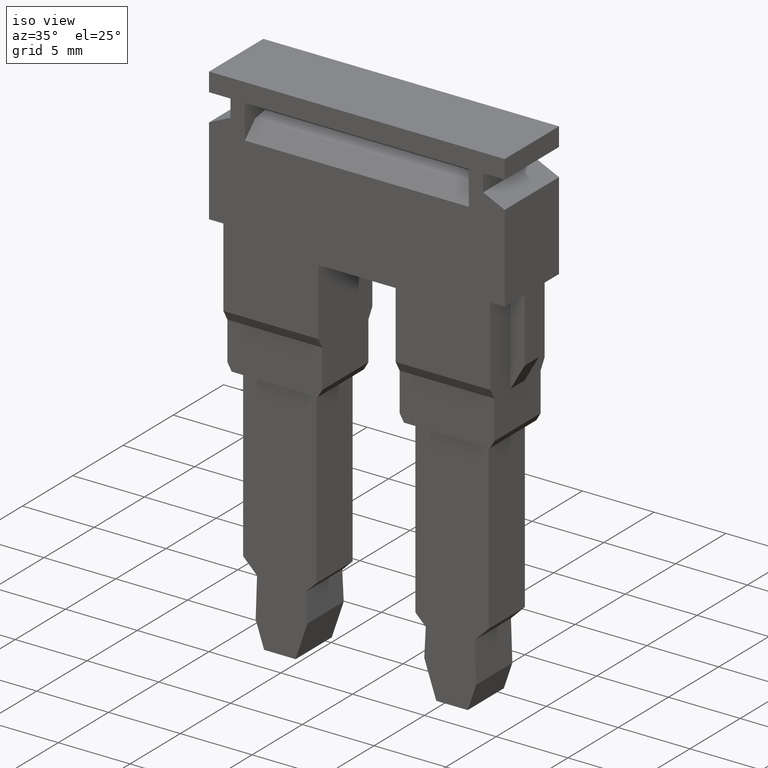
[diagram: clean part render]
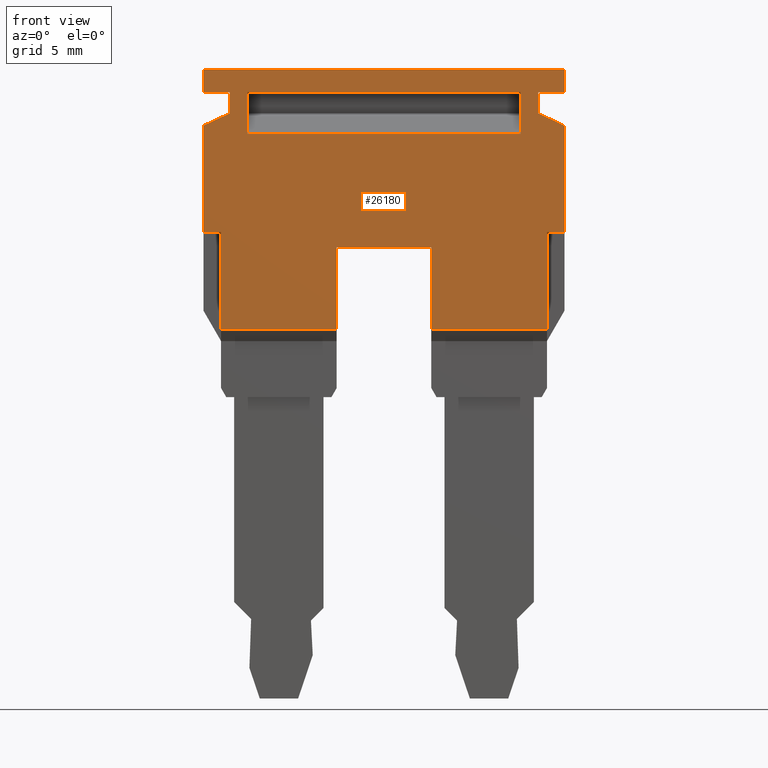
[diagram: tour spotlight — one face highlighted and labeled with its STEP entity id]
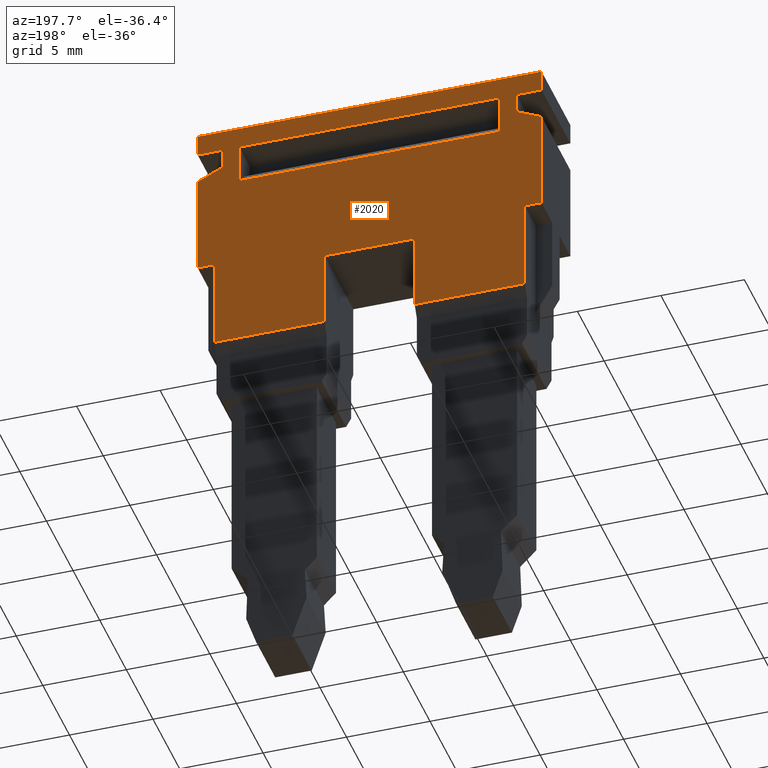
[diagram: tour spotlight — one face highlighted and labeled with its STEP entity id]
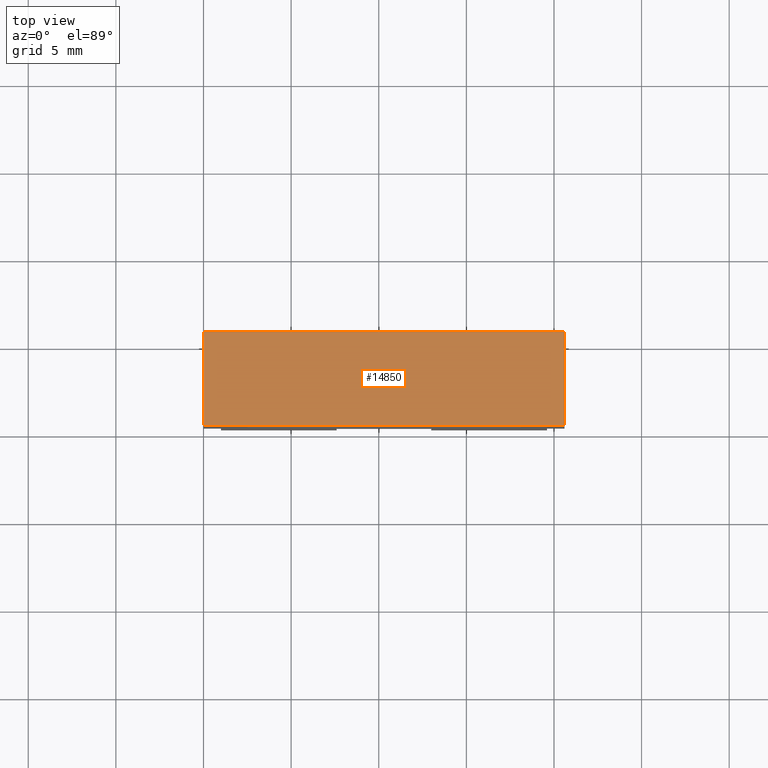
[diagram: tour spotlight — one face highlighted and labeled with its STEP entity id]
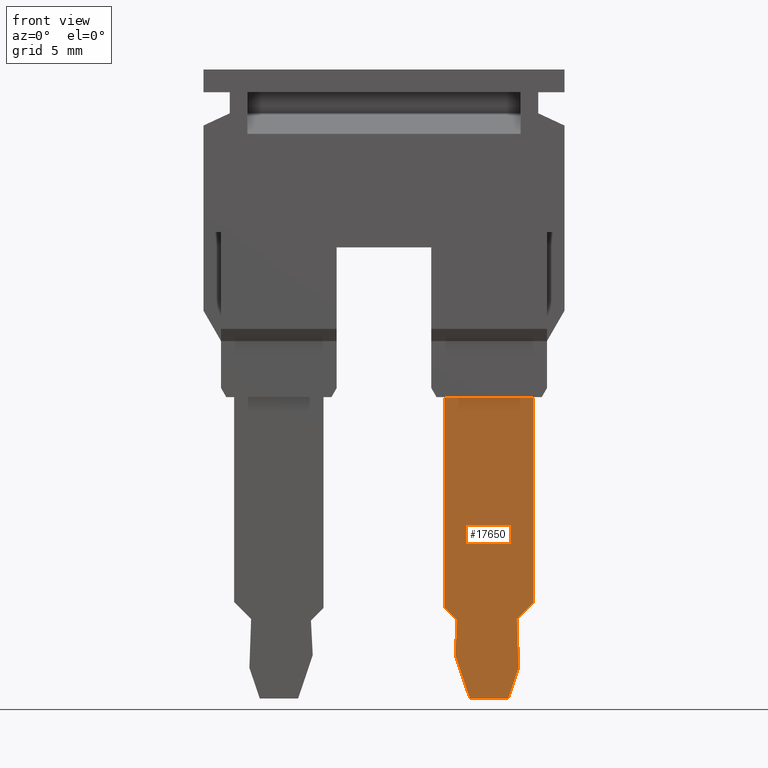
[diagram: tour spotlight — one face highlighted and labeled with its STEP entity id]
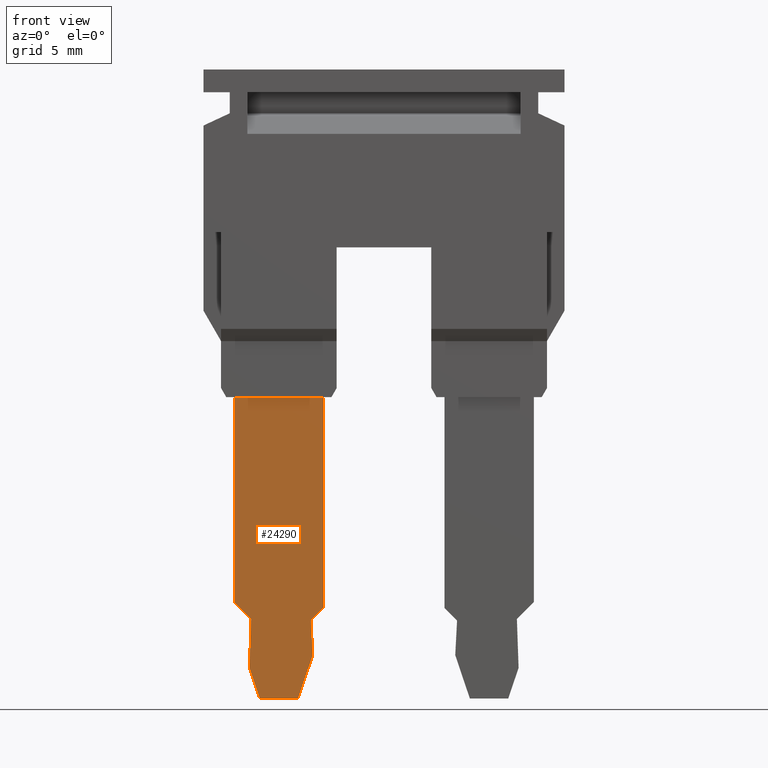
[diagram: tour spotlight — one face highlighted and labeled with its STEP entity id]
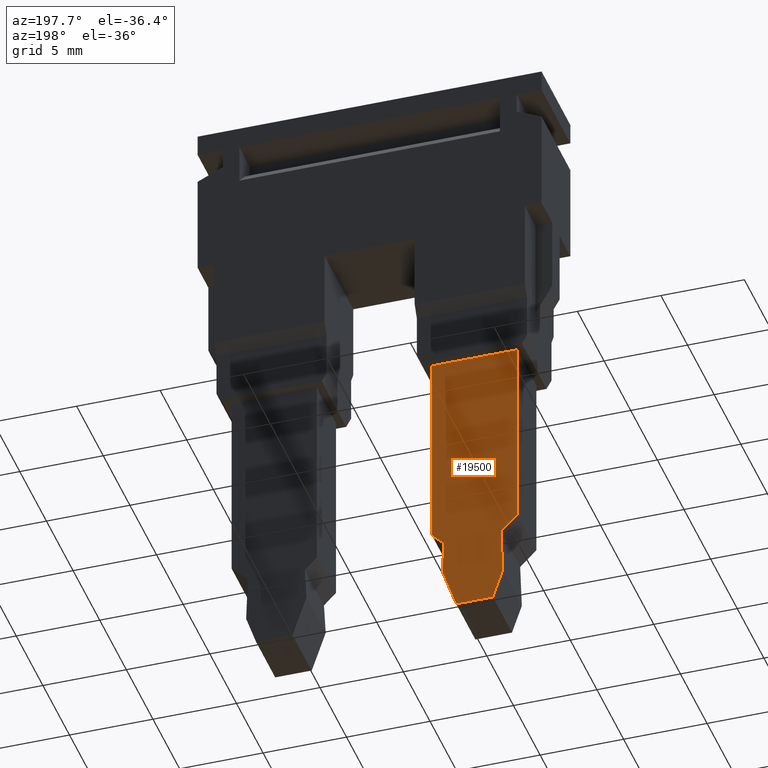
[diagram: tour spotlight — one face highlighted and labeled with its STEP entity id]
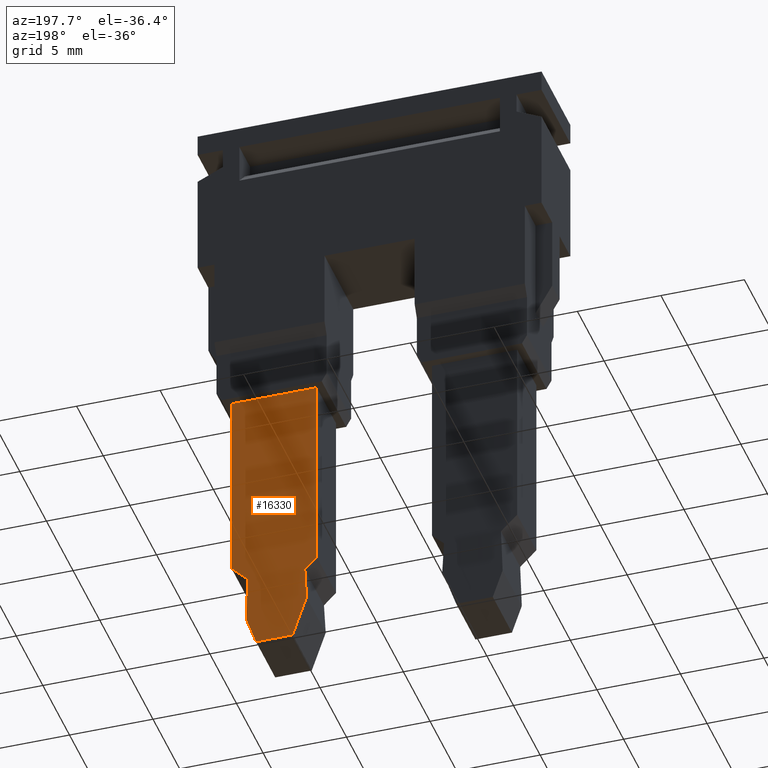
[diagram: tour spotlight — one face highlighted and labeled with its STEP entity id]
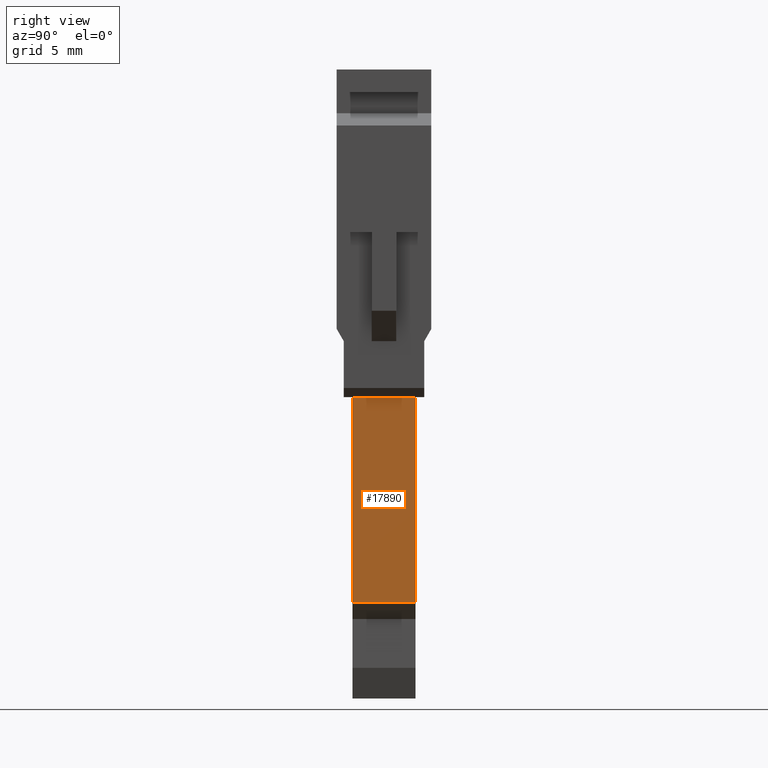
[diagram: tour spotlight — one face highlighted and labeled with its STEP entity id]
A machine part: a face-by-face anatomy tour. The part has 76 B-rep faces; the first image is the clean iso view, then the 8 largest visible faces are spotlighted one at a time (largest first), each with its STEP entity span.

Face 1 — front view, entity #26180. In plain terms, the highlighted planar face has unit normal (0, -1, 0).
Definition (entity closure, byte-faithful):
#2780=CARTESIAN_POINT('',(-12.55,36.1960271983001,-5.6));
#2790=DIRECTION('',(0.,0.,-1.));
#2800=VECTOR('',#2790,1.);
#2810=LINE('',#2780,#2800);
#2820=CARTESIAN_POINT('',(-12.55,36.1960271983001,-7.39999999999998));
#2830=VERTEX_POINT('',#2820);
#2840=CARTESIAN_POINT('',(-12.55,36.1960271983001,-8.39999999999998));
#2850=VERTEX_POINT('',#2840);
#2860=EDGE_CURVE('',#2830,#2850,#2810,.T.);
#3290=CARTESIAN_POINT('',(-12.55,45.4960271983001,-8.39999999999998));
#3300=VERTEX_POINT('',#3290);
#3330=CARTESIAN_POINT('',(-12.55,26.7540884716326,-8.39999999999998));
#3340=DIRECTION('',(0.,1.,0.));
#3350=VECTOR('',#3340,1.);
#3360=LINE('',#3330,#3350);
#3370=CARTESIAN_POINT('',(-12.55,44.1960271983001,-8.39999999999998));
#3380=VERTEX_POINT('',#3370);
#3390=EDGE_CURVE('',#3380,#3300,#3360,.T.);
#4680=CARTESIAN_POINT('',(-12.55,35.3460271983001,4.59999999999997));
#4690=VERTEX_POINT('',#4680);
#4720=CARTESIAN_POINT('',(-12.55,26.7540884716326,4.59999999999997));
#4730=DIRECTION('',(0.,-1.,1.22464679914735E-16));
#4740=VECTOR('',#4730,1.);
#4750=LINE('',#4720,#4740);
#4760=CARTESIAN_POINT('',(-12.55,30.6888475213276,4.59999999999997));
#4770=VERTEX_POINT('',#4760);
#4780=EDGE_CURVE('',#4690,#4770,#4750,.T.);
#6710=CARTESIAN_POINT('',(-12.55,44.1960271983001,12.2));
#6720=VERTEX_POINT('',#6710);
#6750=CARTESIAN_POINT('',(-12.55,26.7540884716326,12.2));
#6760=DIRECTION('',(0.,-1.,0.));
#6770=VECTOR('',#6760,1.);
#6780=LINE('',#6750,#6770);
#6790=CARTESIAN_POINT('',(-12.55,45.4960271983001,12.2));
#6800=VERTEX_POINT('',#6790);
#6810=EDGE_CURVE('',#6800,#6720,#6780,.T.);
#7470=CARTESIAN_POINT('',(-12.55,42.2965657110676,12.2));
#7480=VERTEX_POINT('',#7470);
#7510=CARTESIAN_POINT('',(-12.55,50.5968420262266,-5.6));
#7520=DIRECTION('',(0.,-0.4226182617407,0.90630778703665));
#7530=VECTOR('',#7520,1.);
#7540=LINE('',#7510,#7530);
#7550=CARTESIAN_POINT('',(-12.55,42.9960271983001,10.7));
#7560=VERTEX_POINT('',#7550);
#7570=EDGE_CURVE('',#7560,#7480,#7540,.T.);
#8710=CARTESIAN_POINT('',(-12.55,44.1960271983001,-5.6));
#8720=DIRECTION('',(0.,0.,-1.));
#8730=VECTOR('',#8720,1.);
#8740=LINE('',#8710,#8730);
#8750=CARTESIAN_POINT('',(-12.55,44.1960271983001,-6.9));
#8760=VERTEX_POINT('',#8750);
#8770=EDGE_CURVE('',#8760,#3380,#8740,.T.);
#9020=CARTESIAN_POINT('',(-12.55,26.7540884716326,-6.9));
#9030=DIRECTION('',(0.,1.,0.));
#9040=VECTOR('',#9030,1.);
#9050=LINE('',#9020,#9040);
#9060=CARTESIAN_POINT('',(-12.55,42.9960271983001,-6.9));
#9070=VERTEX_POINT('',#9060);
#9080=EDGE_CURVE('',#9070,#8760,#9050,.T.);
#9350=CARTESIAN_POINT('',(-12.55,30.6888475213276,-0.799999999999989));
#9360=VERTEX_POINT('',#9350);
#9440=CARTESIAN_POINT('',(-12.55,30.6888475213276,-7.39999999999998));
#9450=VERTEX_POINT('',#9440);
#9480=CARTESIAN_POINT('',(-12.55,30.6888475213276,-5.6));
#9490=DIRECTION('',(0.,0.,-1.));
#9500=VECTOR('',#9490,1.);
#9510=LINE('',#9480,#9500);
#9520=EDGE_CURVE('',#9360,#9450,#9510,.T.);
#9710=CARTESIAN_POINT('',(-12.55,26.7540884716326,-0.799999999999989));
#9720=DIRECTION('',(0.,1.,0.));
#9730=VECTOR('',#9720,1.);
#9740=LINE('',#9710,#9730);
#9750=CARTESIAN_POINT('',(-12.55,35.3460271983001,-0.799999999999989));
#9760=VERTEX_POINT('',#9750);
#9770=EDGE_CURVE('',#9360,#9760,#9740,.T.);
#10480=CARTESIAN_POINT('',(-12.55,26.7540884716326,-7.39999999999998));
#10490=DIRECTION('',(0.,-1.,0.));
#10500=VECTOR('',#10490,1.);
#10510=LINE('',#10480,#10500);
#10520=EDGE_CURVE('',#2830,#9450,#10510,.T.);
#10770=CARTESIAN_POINT('',(-12.55,42.2965657110676,-8.39999999999998));
#10780=VERTEX_POINT('',#10770);
#10810=CARTESIAN_POINT('',(-12.55,26.7540884716326,-8.39999999999998));
#10820=DIRECTION('',(0.,1.,0.));
#10830=VECTOR('',#10820,1.);
#10840=LINE('',#10810,#10830);
#10850=EDGE_CURVE('',#2850,#10780,#10840,.T.);
#11450=CARTESIAN_POINT('',(-12.55,43.6022271539016,-5.6));
#11460=DIRECTION('',(0.,0.4226182617407,0.90630778703665));
#11470=VECTOR('',#11460,1.);
#11480=LINE('',#11450,#11470);
#11490=EDGE_CURVE('',#10780,#9070,#11480,.T.);
#11720=CARTESIAN_POINT('',(-12.55,44.1960271983001,10.7));
#11730=VERTEX_POINT('',#11720);
#11760=CARTESIAN_POINT('',(-12.55,44.1960271983001,-5.6));
#11770=DIRECTION('',(0.,0.,-1.));
#11780=VECTOR('',#11770,1.);
#11790=LINE('',#11760,#11780);
#11800=EDGE_CURVE('',#6720,#11730,#11790,.T.);
#12100=CARTESIAN_POINT('',(-12.55,30.6888475213276,11.2));
#12110=VERTEX_POINT('',#12100);
#12140=CARTESIAN_POINT('',(-12.55,26.7540884716326,11.2));
#12150=DIRECTION('',(0.,1.,0.));
#12160=VECTOR('',#12150,1.);
#12170=LINE('',#12140,#12160);
#12180=CARTESIAN_POINT('',(-12.55,36.1960271983001,11.2));
#12190=VERTEX_POINT('',#12180);
#12200=EDGE_CURVE('',#12110,#12190,#12170,.T.);
#12840=CARTESIAN_POINT('',(-12.55,26.7540884716326,12.2));
#12850=DIRECTION('',(0.,-1.,0.));
#12860=VECTOR('',#12850,1.);
#12870=LINE('',#12840,#12860);
#12880=CARTESIAN_POINT('',(-12.55,36.1960271983001,12.2));
#12890=VERTEX_POINT('',#12880);
#12900=EDGE_CURVE('',#7480,#12890,#12870,.T.);
#14530=CARTESIAN_POINT('',(-12.55,36.1960271983001,-5.6));
#14540=DIRECTION('',(0.,0.,-1.));
#14550=VECTOR('',#14540,1.);
#14560=LINE('',#14530,#14550);
#14570=EDGE_CURVE('',#12890,#12190,#14560,.T.);
#14740=CARTESIAN_POINT('',(-12.55,45.4960271983001,-5.6));
#14750=DIRECTION('',(0.,0.,1.));
#14760=VECTOR('',#14750,1.);
#14770=LINE('',#14740,#14760);
#14780=EDGE_CURVE('',#3300,#6800,#14770,.T.);
#15380=CARTESIAN_POINT('',(-12.55,26.7540884716326,10.7));
#15390=DIRECTION('',(0.,-1.,0.));
#15400=VECTOR('',#15390,1.);
#15410=LINE('',#15380,#15400);
#15420=EDGE_CURVE('',#11730,#7560,#15410,.T.);
#25350=CARTESIAN_POINT('',(-12.55,30.6888475213276,-5.6));
#25360=DIRECTION('',(0.,0.,1.));
#25370=VECTOR('',#25360,1.);
#25380=LINE('',#25350,#25370);
#25390=EDGE_CURVE('',#4770,#12110,#25380,.T.);
#25520=CARTESIAN_POINT('',(-12.55,33.9592204289309,5.47430300083341));
#25530=DIRECTION('',(-1.,-0.,-0.));
#25540=DIRECTION('',(0.,0.,-1.));
#25550=AXIS2_PLACEMENT_3D('',#25520,#25530,#25540);
#25560=PLANE('',#25550);
#25570=CARTESIAN_POINT('',(-12.55,26.7540884716326,9.70000000000001));
#25580=DIRECTION('',(0.,1.,0.));
#25590=VECTOR('',#25580,1.);
#25600=LINE('',#25570,#25590);
#25610=CARTESIAN_POINT('',(-12.55,41.8197002175916,9.70000000000001));
#25620=VERTEX_POINT('',#25610);
#25630=CARTESIAN_POINT('',(-12.55,44.1960271983001,9.70000000000001));
#25640=VERTEX_POINT('',#25630);
#25650=EDGE_CURVE('',#25620,#25640,#25600,.T.);
#25660=ORIENTED_EDGE('',*,*,#25650,.F.);
#25670=CARTESIAN_POINT('',(-12.55,44.1960271983001,-5.6));
#25680=DIRECTION('',(0.,0.,-1.));
#25690=VECTOR('',#25680,1.);
#25700=LINE('',#25670,#25690);
#25710=CARTESIAN_POINT('',(-12.55,44.1960271983001,-5.9));
#25720=VERTEX_POINT('',#25710);
#25730=EDGE_CURVE('',#25640,#25720,#25700,.T.);
#25740=ORIENTED_EDGE('',*,*,#25730,.F.);
#25750=CARTESIAN_POINT('',(-12.55,26.7540884716326,-5.9));
#25760=DIRECTION('',(0.,1.,0.));
#25770=VECTOR('',#25760,1.);
#25780=LINE('',#25750,#25770);
#25790=CARTESIAN_POINT('',(-12.55,41.8197002175916,-5.9));
#25800=VERTEX_POINT('',#25790);
#25810=EDGE_CURVE('',#25800,#25720,#25780,.T.);
#25820=ORIENTED_EDGE('',*,*,#25810,.T.);
#25830=CARTESIAN_POINT('',(-12.55,41.8197002175916,-5.6));
#25840=DIRECTION('',(0.,0.,1.));
#25850=VECTOR('',#25840,1.);
#25860=LINE('',#25830,#25850);
#25870=EDGE_CURVE('',#25800,#25620,#25860,.T.);
#25880=ORIENTED_EDGE('',*,*,#25870,.F.);
#25890=EDGE_LOOP('',(#25880,#25820,#25740,#25660));
#25900=FACE_BOUND('',#25890,.T.);
#25910=ORIENTED_EDGE('',*,*,#12900,.F.);
#25920=ORIENTED_EDGE('',*,*,#14570,.F.);
#25930=ORIENTED_EDGE('',*,*,#12200,.T.);
#25940=ORIENTED_EDGE('',*,*,#25390,.T.);
#25950=ORIENTED_EDGE('',*,*,#4780,.T.);
#25960=CARTESIAN_POINT('',(-12.55,35.3460271983001,-5.6));
#25970=DIRECTION('',(0.,0.,1.));
#25980=VECTOR('',#25970,1.);
#25990=LINE('',#25960,#25980);
#26000=EDGE_CURVE('',#9760,#4690,#25990,.T.);
#26010=ORIENTED_EDGE('',*,*,#26000,.T.);
#26020=ORIENTED_EDGE('',*,*,#9770,.T.);
#26030=ORIENTED_EDGE('',*,*,#9520,.F.);
#26040=ORIENTED_EDGE('',*,*,#10520,.T.);
#26050=ORIENTED_EDGE('',*,*,#2860,.F.);
#26060=ORIENTED_EDGE('',*,*,#10850,.F.);
#26070=ORIENTED_EDGE('',*,*,#11490,.F.);
#26080=ORIENTED_EDGE('',*,*,#9080,.F.);
#26090=ORIENTED_EDGE('',*,*,#8770,.F.);
#26100=ORIENTED_EDGE('',*,*,#3390,.F.);
#26110=ORIENTED_EDGE('',*,*,#14780,.F.);
#26120=ORIENTED_EDGE('',*,*,#6810,.F.);
#26130=ORIENTED_EDGE('',*,*,#11800,.F.);
#26140=ORIENTED_EDGE('',*,*,#15420,.F.);
#26150=ORIENTED_EDGE('',*,*,#7570,.F.);
#26160=EDGE_LOOP('',(#26150,#26140,#26130,#26120,#26110,#26100,#26090,
#26080,#26070,#26060,#26050,#26040,#26030,#26020,#26010,#25950,#25940,
#25930,#25920,#25910));
#26170=FACE_OUTER_BOUND('',#26160,.T.);
#26180=ADVANCED_FACE('',(#25900,#26170),#25560,.T.);

Face 2 — auxiliary view, entity #2020. In plain terms, the highlighted planar face has unit normal (-0, 1, -0).
Definition (entity closure, byte-faithful):
#10=CARTESIAN_POINT('',(-7.15000000000002,33.9592204289309,4.85));
#20=DIRECTION('',(1.,0.,-0.));
#30=DIRECTION('',(0.,0.,1.));
#40=AXIS2_PLACEMENT_3D('',#10,#20,#30);
#50=PLANE('',#40);
#60=CARTESIAN_POINT('',(-7.15000000000002,26.7540884716326,
9.69999999999999));
#70=DIRECTION('',(0.,1.,0.));
#80=VECTOR('',#70,1.);
#90=LINE('',#60,#80);
#100=CARTESIAN_POINT('',(-7.15000000000002,41.8197002175916,
9.69999999999999));
#110=VERTEX_POINT('',#100);
#120=CARTESIAN_POINT('',(-7.15000000000002,44.1960271983001,
9.69999999999999));
#130=VERTEX_POINT('',#120);
#140=EDGE_CURVE('',#110,#130,#90,.T.);
#150=ORIENTED_EDGE('',*,*,#140,.T.);
#160=CARTESIAN_POINT('',(-7.15000000000002,41.8197002175916,-5.6));
#170=DIRECTION('',(0.,0.,1.));
#180=VECTOR('',#170,1.);
#190=LINE('',#160,#180);
#200=CARTESIAN_POINT('',(-7.15000000000002,41.8197002175916,
-5.90000000000002));
#210=VERTEX_POINT('',#200);
#220=EDGE_CURVE('',#210,#110,#190,.T.);
#230=ORIENTED_EDGE('',*,*,#220,.T.);
#240=CARTESIAN_POINT('',(-7.15000000000002,26.7540884716326,
-5.90000000000002));
#250=DIRECTION('',(0.,1.,0.));
#260=VECTOR('',#250,1.);
#270=LINE('',#240,#260);
#280=CARTESIAN_POINT('',(-7.15000000000002,44.1960271983001,
-5.90000000000002));
#290=VERTEX_POINT('',#280);
#300=EDGE_CURVE('',#210,#290,#270,.T.);
#310=ORIENTED_EDGE('',*,*,#300,.F.);
#320=CARTESIAN_POINT('',(-7.15000000000002,44.1960271983001,-5.6));
#330=DIRECTION('',(0.,0.,-1.));
#340=VECTOR('',#330,1.);
#350=LINE('',#320,#340);
#360=EDGE_CURVE('',#130,#290,#350,.T.);
#370=ORIENTED_EDGE('',*,*,#360,.T.);
#380=EDGE_LOOP('',(#370,#310,#230,#150));
#390=FACE_BOUND('',#380,.T.);
#400=CARTESIAN_POINT('',(-7.15000000000002,36.1960271983001,-5.6));
#410=DIRECTION('',(0.,0.,1.));
#420=VECTOR('',#410,1.);
#430=LINE('',#400,#420);
#440=CARTESIAN_POINT('',(-7.15000000000002,36.1960271983001,
-8.39999999999998));
#450=VERTEX_POINT('',#440);
#460=CARTESIAN_POINT('',(-7.15000000000002,36.1960271983001,
-7.39999999999998));
#470=VERTEX_POINT('',#460);
#480=EDGE_CURVE('',#450,#470,#430,.T.);
#490=ORIENTED_EDGE('',*,*,#480,.F.);
#500=CARTESIAN_POINT('',(-7.15000000000002,26.7540884716326,
-7.39999999999998));
#510=DIRECTION('',(0.,1.,0.));
#520=VECTOR('',#510,1.);
#530=LINE('',#500,#520);
#540=CARTESIAN_POINT('',(-7.15000000000002,30.6888475213276,
-7.39999999999998));
#550=VERTEX_POINT('',#540);
#560=EDGE_CURVE('',#550,#470,#530,.T.);
#570=ORIENTED_EDGE('',*,*,#560,.T.);
#580=CARTESIAN_POINT('',(-7.15000000000002,30.6888475213276,-5.6));
#590=DIRECTION('',(0.,0.,1.));
#600=VECTOR('',#590,1.);
#610=LINE('',#580,#600);
#620=CARTESIAN_POINT('',(-7.15000000000002,30.6888475213276,
-0.799999999999989));
#630=VERTEX_POINT('',#620);
#640=EDGE_CURVE('',#550,#630,#610,.T.);
#650=ORIENTED_EDGE('',*,*,#640,.F.);
#660=CARTESIAN_POINT('',(-7.15000000000002,26.7540884716326,
-0.799999999999989));
#670=DIRECTION('',(0.,-1.,0.));
#680=VECTOR('',#670,1.);
#690=LINE('',#660,#680);
#700=CARTESIAN_POINT('',(-7.15000000000002,35.3460271983001,
-0.799999999999989));
#710=VERTEX_POINT('',#700);
#720=EDGE_CURVE('',#710,#630,#690,.T.);
#730=ORIENTED_EDGE('',*,*,#720,.T.);
#740=CARTESIAN_POINT('',(-7.15000000000002,35.3460271983001,-5.6));
#750=DIRECTION('',(0.,0.,-1.));
#760=VECTOR('',#750,1.);
#770=LINE('',#740,#760);
#780=CARTESIAN_POINT('',(-7.15000000000002,35.3460271983001,
4.59999999999997));
#790=VERTEX_POINT('',#780);
#800=EDGE_CURVE('',#790,#710,#770,.T.);
#810=ORIENTED_EDGE('',*,*,#800,.T.);
#820=CARTESIAN_POINT('',(-7.15000000000002,26.7540884716326,
4.59999999999997));
#830=DIRECTION('',(0.,1.,-1.22464679914735E-16));
#840=VECTOR('',#830,1.);
#850=LINE('',#820,#840);
#860=CARTESIAN_POINT('',(-7.15000000000001,30.6888475213276,
4.59999999999997));
#870=VERTEX_POINT('',#860);
#880=EDGE_CURVE('',#870,#790,#850,.T.);
#890=ORIENTED_EDGE('',*,*,#880,.T.);
#900=CARTESIAN_POINT('',(-7.15000000000002,30.6888475213276,-5.6));
#910=DIRECTION('',(0.,0.,-1.));
#920=VECTOR('',#910,1.);
#930=LINE('',#900,#920);
#940=CARTESIAN_POINT('',(-7.15000000000002,30.6888475213276,11.2));
#950=VERTEX_POINT('',#940);
#960=EDGE_CURVE('',#950,#870,#930,.T.);
#970=ORIENTED_EDGE('',*,*,#960,.T.);
#980=CARTESIAN_POINT('',(-7.15000000000002,26.7540884716326,11.2));
#990=DIRECTION('',(0.,-1.,0.));
#1000=VECTOR('',#990,1.);
#1010=LINE('',#980,#1000);
#1020=CARTESIAN_POINT('',(-7.15000000000002,36.1960271983001,11.2));
#1030=VERTEX_POINT('',#1020);
#1040=EDGE_CURVE('',#1030,#950,#1010,.T.);
#1050=ORIENTED_EDGE('',*,*,#1040,.T.);
#1060=CARTESIAN_POINT('',(-7.15000000000002,36.1960271983001,-5.6));
#1070=DIRECTION('',(0.,0.,1.));
#1080=VECTOR('',#1070,1.);
#1090=LINE('',#1060,#1080);
#1100=CARTESIAN_POINT('',(-7.15000000000002,36.1960271983001,12.2));
#1110=VERTEX_POINT('',#1100);
#1120=EDGE_CURVE('',#1030,#1110,#1090,.T.);
#1130=ORIENTED_EDGE('',*,*,#1120,.F.);
#1140=CARTESIAN_POINT('',(-7.15000000000002,26.7540884716326,12.2));
#1150=DIRECTION('',(0.,-1.,0.));
#1160=VECTOR('',#1150,1.);
#1170=LINE('',#1140,#1160);
#1180=CARTESIAN_POINT('',(-7.15000000000002,42.2965657110676,12.2));
#1190=VERTEX_POINT('',#1180);
#1200=EDGE_CURVE('',#1190,#1110,#1170,.T.);
#1210=ORIENTED_EDGE('',*,*,#1200,.T.);
#1220=CARTESIAN_POINT('',(-7.15000000000002,50.5968420262266,-5.6));
#1230=DIRECTION('',(0.,-0.4226182617407,0.90630778703665));
#1240=VECTOR('',#1230,1.);
#1250=LINE('',#1220,#1240);
#1260=CARTESIAN_POINT('',(-7.15000000000002,42.9960271983001,10.7));
#1270=VERTEX_POINT('',#1260);
#1280=EDGE_CURVE('',#1270,#1190,#1250,.T.);
#1290=ORIENTED_EDGE('',*,*,#1280,.T.);
#1300=CARTESIAN_POINT('',(-7.15000000000002,26.7540884716326,10.7));
#1310=DIRECTION('',(0.,-1.,0.));
#1320=VECTOR('',#1310,1.);
#1330=LINE('',#1300,#1320);
#1340=CARTESIAN_POINT('',(-7.15000000000002,44.1960271983001,10.7));
#1350=VERTEX_POINT('',#1340);
#1360=EDGE_CURVE('',#1350,#1270,#1330,.T.);
#1370=ORIENTED_EDGE('',*,*,#1360,.T.);
#1380=CARTESIAN_POINT('',(-7.15000000000002,44.1960271983001,-5.6));
#1390=DIRECTION('',(0.,0.,-1.));
#1400=VECTOR('',#1390,1.);
#1410=LINE('',#1380,#1400);
#1420=CARTESIAN_POINT('',(-7.15000000000002,44.1960271983001,12.2));
#1430=VERTEX_POINT('',#1420);
#1440=EDGE_CURVE('',#1430,#1350,#1410,.T.);
#1450=ORIENTED_EDGE('',*,*,#1440,.T.);
#1460=CARTESIAN_POINT('',(-7.15000000000002,26.7540884716326,12.2));
#1470=DIRECTION('',(0.,-1.,0.));
#1480=VECTOR('',#1470,1.);
#1490=LINE('',#1460,#1480);
#1500=CARTESIAN_POINT('',(-7.15000000000002,45.4960271983001,12.2));
#1510=VERTEX_POINT('',#1500);
#1520=EDGE_CURVE('',#1510,#1430,#1490,.T.);
#1530=ORIENTED_EDGE('',*,*,#1520,.T.);
#1540=CARTESIAN_POINT('',(-7.15000000000002,45.4960271983001,-5.6));
#1550=DIRECTION('',(0.,0.,-1.));
#1560=VECTOR('',#1550,1.);
#1570=LINE('',#1540,#1560);
#1580=CARTESIAN_POINT('',(-7.15000000000002,45.4960271983001,
-8.39999999999998));
#1590=VERTEX_POINT('',#1580);
#1600=EDGE_CURVE('',#1510,#1590,#1570,.T.);
#1610=ORIENTED_EDGE('',*,*,#1600,.F.);
#1620=CARTESIAN_POINT('',(-7.15000000000002,26.7540884716326,
-8.39999999999998));
#1630=DIRECTION('',(0.,1.,0.));
#1640=VECTOR('',#1630,1.);
#1650=LINE('',#1620,#1640);
#1660=CARTESIAN_POINT('',(-7.15000000000002,44.1960271983001,
-8.39999999999998));
#1670=VERTEX_POINT('',#1660);
#1680=EDGE_CURVE('',#1670,#1590,#1650,.T.);
#1690=ORIENTED_EDGE('',*,*,#1680,.T.);
#1700=CARTESIAN_POINT('',(-7.15000000000002,44.1960271983001,-5.6));
#1710=DIRECTION('',(0.,0.,-1.));
#1720=VECTOR('',#1710,1.);
#1730=LINE('',#1700,#1720);
#1740=CARTESIAN_POINT('',(-7.15000000000002,44.1960271983001,-6.9));
#1750=VERTEX_POINT('',#1740);
#1760=EDGE_CURVE('',#1750,#1670,#1730,.T.);
#1770=ORIENTED_EDGE('',*,*,#1760,.T.);
#1780=CARTESIAN_POINT('',(-7.15000000000002,26.7540884716326,-6.9));
#1790=DIRECTION('',(0.,1.,0.));
#1800=VECTOR('',#1790,1.);
#1810=LINE('',#1780,#1800);
#1820=CARTESIAN_POINT('',(-7.15000000000002,42.9960271983001,-6.9));
#1830=VERTEX_POINT('',#1820);
#1840=EDGE_CURVE('',#1830,#1750,#1810,.T.);
#1850=ORIENTED_EDGE('',*,*,#1840,.T.);
#1860=CARTESIAN_POINT('',(-7.15000000000002,43.6022271539016,-5.6));
#1870=DIRECTION('',(0.,0.4226182617407,0.90630778703665));
#1880=VECTOR('',#1870,1.);
#1890=LINE('',#1860,#1880);
#1900=CARTESIAN_POINT('',(-7.15000000000002,42.2965657110676,
-8.39999999999998));
#1910=VERTEX_POINT('',#1900);
#1920=EDGE_CURVE('',#1910,#1830,#1890,.T.);
#1930=ORIENTED_EDGE('',*,*,#1920,.T.);
#1940=CARTESIAN_POINT('',(-7.15000000000002,26.7540884716326,
-8.39999999999998));
#1950=DIRECTION('',(0.,1.,0.));
#1960=VECTOR('',#1950,1.);
#1970=LINE('',#1940,#1960);
#1980=EDGE_CURVE('',#450,#1910,#1970,.T.);
#1990=ORIENTED_EDGE('',*,*,#1980,.T.);
#2000=EDGE_LOOP('',(#1990,#1930,#1850,#1770,#1690,#1610,#1530,#1450,
#1370,#1290,#1210,#1130,#1050,#970,#890,#810,#730,#650,#570,#490));
#2010=FACE_OUTER_BOUND('',#2000,.T.);
#2020=ADVANCED_FACE('',(#390,#2010),#50,.T.);

Face 3 — top view, entity #14850. In plain terms, the highlighted planar face has unit normal (-0, 0, 1).
Definition (entity closure, byte-faithful):
#1500=CARTESIAN_POINT('',(-7.15000000000002,45.4960271983001,12.2));
#1510=VERTEX_POINT('',#1500);
#1540=CARTESIAN_POINT('',(-7.15000000000002,45.4960271983001,-5.6));
#1550=DIRECTION('',(0.,0.,-1.));
#1560=VECTOR('',#1550,1.);
#1570=LINE('',#1540,#1560);
#1580=CARTESIAN_POINT('',(-7.15000000000002,45.4960271983001,
-8.39999999999998));
#1590=VERTEX_POINT('',#1580);
#1600=EDGE_CURVE('',#1510,#1590,#1570,.T.);
#3250=CARTESIAN_POINT('',(-10.9510893734794,45.4960271983001,
-8.39999999999998));
#3260=DIRECTION('',(1.,0.,-2.44929359829471E-16));
#3270=VECTOR('',#3260,1.);
#3280=LINE('',#3250,#3270);
#3290=CARTESIAN_POINT('',(-12.55,45.4960271983001,-8.39999999999998));
#3300=VERTEX_POINT('',#3290);
#3310=EDGE_CURVE('',#3300,#1590,#3280,.T.);
#6790=CARTESIAN_POINT('',(-12.55,45.4960271983001,12.2));
#6800=VERTEX_POINT('',#6790);
#6830=CARTESIAN_POINT('',(-10.9510893734794,45.4960271983001,12.2));
#6840=DIRECTION('',(1.,0.,2.44929359829471E-16));
#6850=VECTOR('',#6840,1.);
#6860=LINE('',#6830,#6850);
#6870=EDGE_CURVE('',#6800,#1510,#6860,.T.);
#14690=CARTESIAN_POINT('',(-11.6500000000023,45.4960271983001,-14.303517
));
#14700=DIRECTION('',(0.,1.,0.));
#14710=DIRECTION('',(0.,0.,1.));
#14720=AXIS2_PLACEMENT_3D('',#14690,#14700,#14710);
#14730=PLANE('',#14720);
#14740=CARTESIAN_POINT('',(-12.55,45.4960271983001,-5.6));
#14750=DIRECTION('',(0.,0.,1.));
#14760=VECTOR('',#14750,1.);
#14770=LINE('',#14740,#14760);
#14780=EDGE_CURVE('',#3300,#6800,#14770,.T.);
#14790=ORIENTED_EDGE('',*,*,#14780,.T.);
#14800=ORIENTED_EDGE('',*,*,#3310,.F.);
#14810=ORIENTED_EDGE('',*,*,#1600,.T.);
#14820=ORIENTED_EDGE('',*,*,#6870,.T.);
#14830=EDGE_LOOP('',(#14820,#14810,#14800,#14790));
#14840=FACE_OUTER_BOUND('',#14830,.T.);
#14850=ADVANCED_FACE('',(#14840),#14730,.T.);

Face 4 — front view, entity #17650. In plain terms, the highlighted planar face has unit normal (0, -1, 0).
Definition (entity closure, byte-faithful):
#5130=CARTESIAN_POINT('',(-11.65,26.7960271983001,10.45));
#5140=VERTEX_POINT('',#5130);
#5190=CARTESIAN_POINT('',(-11.65,26.7960271983001,-5.6));
#5200=DIRECTION('',(-1.22464679914735E-16,0.,-1.));
#5210=VECTOR('',#5200,1.);
#5220=LINE('',#5190,#5210);
#5230=CARTESIAN_POINT('',(-11.65,26.7960271983001,5.35000000000001));
#5240=VERTEX_POINT('',#5230);
#5250=EDGE_CURVE('',#5140,#5240,#5220,.T.);
#16870=CARTESIAN_POINT('',(-11.65,15.7062228456001,7.41858));
#16880=DIRECTION('',(-1.,0.,1.22464679914735E-16));
#16890=DIRECTION('',(0.,-1.,0.));
#16900=AXIS2_PLACEMENT_3D('',#16870,#16880,#16890);
#16910=PLANE('',#16900);
#16920=CARTESIAN_POINT('',(-11.65,1.75068084560001,10.45));
#16930=DIRECTION('',(0.,1.,0.));
#16940=VECTOR('',#16930,1.);
#16950=LINE('',#16920,#16940);
#16960=CARTESIAN_POINT('',(-11.65,15.1035690385662,10.45));
#16970=VERTEX_POINT('',#16960);
#16980=EDGE_CURVE('',#16970,#5140,#16950,.T.);
#16990=ORIENTED_EDGE('',*,*,#16980,.T.);
#17000=CARTESIAN_POINT('',(-11.65,-0.946430961433851,-5.6));
#17010=DIRECTION('',(5.55111512312578E-17,0.707106781186548,
0.707106781186548));
#17020=VECTOR('',#17010,1.);
#17030=LINE('',#17000,#17020);
#17040=CARTESIAN_POINT('',(-11.65,14.1369679288971,9.48339889033098));
#17050=VERTEX_POINT('',#17040);
#17060=EDGE_CURVE('',#17050,#16970,#17030,.T.);
#17070=ORIENTED_EDGE('',*,*,#17060,.T.);
#17080=CARTESIAN_POINT('',(-11.65,1.75068084560001,9.91593756642543));
#17090=DIRECTION('',(-4.27395569285731E-18,0.999390827019096,
-0.0348994967025023));
#17100=VECTOR('',#17090,1.);
#17110=LINE('',#17080,#17100);
#17120=CARTESIAN_POINT('',(-11.65,11.3476283907902,9.58080477337544));
#17130=VERTEX_POINT('',#17120);
#17140=EDGE_CURVE('',#17130,#17050,#17110,.T.);
#17150=ORIENTED_EDGE('',*,*,#17140,.T.);
#17160=CARTESIAN_POINT('',(-11.65,1.75068084560001,6.34641269337296));
#17170=DIRECTION('',(3.91118902855721E-17,0.947629147539961,
0.319372820904797));
#17180=VECTOR('',#17170,1.);
#17190=LINE('',#17160,#17180);
#17200=CARTESIAN_POINT('',(-11.65,9.59602719830006,8.99047487966332));
#17210=VERTEX_POINT('',#17200);
#17220=EDGE_CURVE('',#17210,#17130,#17190,.T.);
#17230=ORIENTED_EDGE('',*,*,#17220,.T.);
#17240=CARTESIAN_POINT('',(-11.65,9.59602719830006,-5.6));
#17250=DIRECTION('',(1.22464679914735E-16,0.,1.));
#17260=VECTOR('',#17250,1.);
#17270=LINE('',#17240,#17260);
#17280=CARTESIAN_POINT('',(-11.65,9.59602719830006,6.80070635701419));
#17290=VERTEX_POINT('',#17280);
#17300=EDGE_CURVE('',#17290,#17210,#17270,.T.);
#17310=ORIENTED_EDGE('',*,*,#17300,.T.);
#17320=CARTESIAN_POINT('',(-11.65,1.75068084560001,9.44476854330451));
#17330=DIRECTION('',(3.91118902855714E-17,-0.947629147539962,
0.319372820904792));
#17340=VECTOR('',#17330,1.);
#17350=LINE('',#17320,#17340);
#17360=CARTESIAN_POINT('',(-11.65,12.0716188825348,5.96637501372978));
#17370=VERTEX_POINT('',#17360);
#17380=EDGE_CURVE('',#17370,#17290,#17350,.T.);
#17390=ORIENTED_EDGE('',*,*,#17380,.T.);
#17400=CARTESIAN_POINT('',(-11.65,1.75068084560001,5.42547757109615));
#17410=DIRECTION('',(-6.40930612932371E-18,-0.998629534754574,
-0.0523359562429438));
#17420=VECTOR('',#17410,1.);
#17430=LINE('',#17400,#17420);
#17440=CARTESIAN_POINT('',(-11.65,14.0509213383293,6.07010585996744));
#17450=VERTEX_POINT('',#17440);
#17460=EDGE_CURVE('',#17450,#17370,#17430,.T.);
#17470=ORIENTED_EDGE('',*,*,#17460,.T.);
#17480=CARTESIAN_POINT('',(-11.65,25.7210271982898,-5.6));
#17490=DIRECTION('',(1.11022302462516E-16,-0.707106781186339,
0.707106781186757));
#17500=VECTOR('',#17490,1.);
#17510=LINE('',#17480,#17500);
#17520=CARTESIAN_POINT('',(-11.65,14.7710271982963,5.35000000000001));
#17530=VERTEX_POINT('',#17520);
#17540=EDGE_CURVE('',#17530,#17450,#17510,.T.);
#17550=ORIENTED_EDGE('',*,*,#17540,.T.);
#17560=CARTESIAN_POINT('',(-11.65,1.75068084560001,5.35000000000001));
#17570=DIRECTION('',(-5.24119779308045E-33,-1.,-4.27976278281181E-17));
#17580=VECTOR('',#17570,1.);
#17590=LINE('',#17560,#17580);
#17600=EDGE_CURVE('',#5240,#17530,#17590,.T.);
#17610=ORIENTED_EDGE('',*,*,#17600,.T.);
#17620=ORIENTED_EDGE('',*,*,#5250,.T.);
#17630=EDGE_LOOP('',(#17620,#17610,#17550,#17470,#17390,#17310,#17230,
#17150,#17070,#16990));
#17640=FACE_OUTER_BOUND('',#17630,.T.);
#17650=ADVANCED_FACE('',(#17640),#16910,.T.);

Face 5 — front view, entity #24290. In plain terms, the highlighted planar face has unit normal (0, -1, 0).
Definition (entity closure, byte-faithful):
#8080=CARTESIAN_POINT('',(-11.65,26.7960271983001,-1.55000000000001));
#8090=VERTEX_POINT('',#8080);
#8140=CARTESIAN_POINT('',(-11.65,26.7960271983001,-5.6));
#8150=DIRECTION('',(-1.22464679914735E-16,0.,-1.));
#8160=VECTOR('',#8150,1.);
#8170=LINE('',#8140,#8160);
#8180=CARTESIAN_POINT('',(-11.65,26.7960271983001,-6.64999999999999));
#8190=VERTEX_POINT('',#8180);
#8200=EDGE_CURVE('',#8090,#8190,#8170,.T.);
#16870=CARTESIAN_POINT('',(-11.65,15.7062228456001,7.41858));
#16880=DIRECTION('',(-1.,0.,1.22464679914735E-16));
#16890=DIRECTION('',(0.,-1.,0.));
#16900=AXIS2_PLACEMENT_3D('',#16870,#16880,#16890);
#16910=PLANE('',#16900);
#19680=CARTESIAN_POINT('',(-11.65,14.7710271982963,-1.55000000000001));
#19690=VERTEX_POINT('',#19680);
#19720=CARTESIAN_POINT('',(-11.65,26.7540884716326,-1.55000000000001));
#19730=DIRECTION('',(9.24446373305873E-33,-1.,4.27976278281181E-17));
#19740=VECTOR('',#19730,1.);
#19750=LINE('',#19720,#19740);
#19760=EDGE_CURVE('',#8090,#19690,#19750,.T.);
#20230=CARTESIAN_POINT('',(-11.65,14.1369679288971,-5.68339889033097));
#20240=VERTEX_POINT('',#20230);
#20270=CARTESIAN_POINT('',(-11.65,1.75068084560001,-6.11593756642542));
#20280=DIRECTION('',(-4.27395569285731E-18,-0.999390827019096,
-0.0348994967025023));
#20290=VECTOR('',#20280,1.);
#20300=LINE('',#20270,#20290);
#20310=CARTESIAN_POINT('',(-11.65,11.3476283907902,-5.78080477337542));
#20320=VERTEX_POINT('',#20310);
#20330=EDGE_CURVE('',#20240,#20320,#20300,.T.);
#20850=CARTESIAN_POINT('',(-11.65,12.0716188825348,-2.16637501372977));
#20860=VERTEX_POINT('',#20850);
#20890=CARTESIAN_POINT('',(-11.65,1.75068084560001,-1.62547757109615));
#20900=DIRECTION('',(-6.40930612932371E-18,0.998629534754574,
-0.0523359562429438));
#20910=VECTOR('',#20900,1.);
#20920=LINE('',#20890,#20910);
#20930=CARTESIAN_POINT('',(-11.65,14.0509213383293,-2.27010585996744));
#20940=VERTEX_POINT('',#20930);
#20950=EDGE_CURVE('',#20860,#20940,#20920,.T.);
#21470=CARTESIAN_POINT('',(-11.65,15.1035690385662,-6.64999999999999));
#21480=VERTEX_POINT('',#21470);
#21510=CARTESIAN_POINT('',(-11.65,14.0535690385662,-5.6));
#21520=DIRECTION('',(5.55111512312578E-17,-0.707106781186548,
0.707106781186548));
#21530=VECTOR('',#21520,1.);
#21540=LINE('',#21510,#21530);
#21550=EDGE_CURVE('',#21480,#20240,#21540,.T.);
#22020=CARTESIAN_POINT('',(-11.65,9.59602719830007,-3.00070635701419));
#22030=VERTEX_POINT('',#22020);
#22060=CARTESIAN_POINT('',(-11.65,1.75068084560001,-5.64476854330449));
#22070=DIRECTION('',(3.91118902855714E-17,0.947629147539962,
0.319372820904792));
#22080=VECTOR('',#22070,1.);
#22090=LINE('',#22060,#22080);
#22100=EDGE_CURVE('',#22030,#20860,#22090,.T.);
#22540=CARTESIAN_POINT('',(-11.65,10.7210271982987,-5.6));
#22550=DIRECTION('',(1.11022302462516E-16,0.707106781186339,
0.707106781186757));
#22560=VECTOR('',#22550,1.);
#22570=LINE('',#22540,#22560);
#22580=EDGE_CURVE('',#20940,#19690,#22570,.T.);
#22780=CARTESIAN_POINT('',(-11.65,1.75068084560001,-2.54641269337295));
#22790=DIRECTION('',(3.91118902855721E-17,-0.947629147539961,
0.319372820904797));
#22800=VECTOR('',#22790,1.);
#22810=LINE('',#22780,#22800);
#22820=CARTESIAN_POINT('',(-11.65,9.59602719830007,-5.19047487966331));
#22830=VERTEX_POINT('',#22820);
#22840=EDGE_CURVE('',#20320,#22830,#22810,.T.);
#23090=CARTESIAN_POINT('',(-11.65,9.59602719830007,-5.6));
#23100=DIRECTION('',(1.22464679914735E-16,0.,1.));
#23110=VECTOR('',#23100,1.);
#23120=LINE('',#23090,#23110);
#23130=EDGE_CURVE('',#22830,#22030,#23120,.T.);
#23340=CARTESIAN_POINT('',(-11.65,26.7540884716326,-6.64999999999999));
#23350=DIRECTION('',(-6.23724585938694E-112,1.,-3.74534108375376E-96));
#23360=VECTOR('',#23350,1.);
#23370=LINE('',#23340,#23360);
#23380=EDGE_CURVE('',#21480,#8190,#23370,.T.);
#24170=ORIENTED_EDGE('',*,*,#19760,.F.);
#24180=ORIENTED_EDGE('',*,*,#22580,.T.);
#24190=ORIENTED_EDGE('',*,*,#20950,.T.);
#24200=ORIENTED_EDGE('',*,*,#22100,.T.);
#24210=ORIENTED_EDGE('',*,*,#23130,.T.);
#24220=ORIENTED_EDGE('',*,*,#22840,.T.);
#24230=ORIENTED_EDGE('',*,*,#20330,.T.);
#24240=ORIENTED_EDGE('',*,*,#21550,.T.);
#24250=ORIENTED_EDGE('',*,*,#23380,.F.);
#24260=ORIENTED_EDGE('',*,*,#8200,.T.);
#24270=EDGE_LOOP('',(#24260,#24250,#24240,#24230,#24220,#24210,#24200,
#24190,#24180,#24170));
#24280=FACE_OUTER_BOUND('',#24270,.T.);
#24290=ADVANCED_FACE('',(#24280),#16910,.T.);

Face 6 — auxiliary view, entity #19500. In plain terms, the highlighted planar face has unit normal (-0, 1, -0).
Definition (entity closure, byte-faithful):
#8100=CARTESIAN_POINT('',(-8.05000000000002,26.7960271983001,
-1.55000000000001));
#8110=VERTEX_POINT('',#8100);
#8260=CARTESIAN_POINT('',(-8.05000000000002,26.7960271983001,
-6.64999999999999));
#8270=VERTEX_POINT('',#8260);
#8300=CARTESIAN_POINT('',(-8.05000000000002,26.7960271983001,-5.6));
#8310=DIRECTION('',(1.22464679914735E-16,0.,1.));
#8320=VECTOR('',#8310,1.);
#8330=LINE('',#8300,#8320);
#8340=EDGE_CURVE('',#8270,#8110,#8330,.T.);
#18720=CARTESIAN_POINT('',(-8.05000000000002,32.7960271983001,-4.1));
#18730=DIRECTION('',(1.,0.,-1.22464679914735E-16));
#18740=DIRECTION('',(-1.22464679914735E-16,0.,-1.));
#18750=AXIS2_PLACEMENT_3D('',#18720,#18730,#18740);
#18760=PLANE('',#18750);
#18770=CARTESIAN_POINT('',(-8.05000000000002,32.680519038251,
-6.64999999999999));
#18780=DIRECTION('',(4.58671996993412E-112,-1.,3.74534108375376E-96));
#18790=VECTOR('',#18780,1.);
#18800=LINE('',#18770,#18790);
#18810=CARTESIAN_POINT('',(-8.05000000000002,15.1035690385662,
-6.64999999999999));
#18820=VERTEX_POINT('',#18810);
#18830=EDGE_CURVE('',#8270,#18820,#18800,.T.);
#18840=ORIENTED_EDGE('',*,*,#18830,.F.);
#18850=CARTESIAN_POINT('',(-8.05000000000002,14.0535690385662,-5.6));
#18860=DIRECTION('',(-5.55111512312578E-17,0.707106781186548,
-0.707106781186548));
#18870=VECTOR('',#18860,1.);
#18880=LINE('',#18850,#18870);
#18890=CARTESIAN_POINT('',(-8.05000000000002,14.1369679288971,
-5.68339889033097));
#18900=VERTEX_POINT('',#18890);
#18910=EDGE_CURVE('',#18900,#18820,#18880,.T.);
#18920=ORIENTED_EDGE('',*,*,#18910,.T.);
#18930=CARTESIAN_POINT('',(-8.05000000000002,32.680519038251,
-5.03584381648275));
#18940=DIRECTION('',(-4.27395569285731E-18,-0.999390827019096,
-0.0348994967025023));
#18950=VECTOR('',#18940,1.);
#18960=LINE('',#18930,#18950);
#18970=CARTESIAN_POINT('',(-8.05000000000002,11.3476283907902,
-5.78080477337543));
#18980=VERTEX_POINT('',#18970);
#18990=EDGE_CURVE('',#18900,#18980,#18960,.T.);
#19000=ORIENTED_EDGE('',*,*,#18990,.F.);
#19010=CARTESIAN_POINT('',(-8.05000000000002,32.680519038251,
-12.9704796391391));
#19020=DIRECTION('',(-3.91118902855721E-17,0.947629147539961,
-0.319372820904797));
#19030=VECTOR('',#19020,1.);
#19040=LINE('',#19010,#19030);
#19050=CARTESIAN_POINT('',(-8.05000000000002,9.59602719830007,
-5.19047487966331));
#19060=VERTEX_POINT('',#19050);
#19070=EDGE_CURVE('',#19060,#18980,#19040,.T.);
#19080=ORIENTED_EDGE('',*,*,#19070,.T.);
#19090=CARTESIAN_POINT('',(-8.05000000000002,9.59602719830007,-5.6));
#19100=DIRECTION('',(1.22464679914735E-16,0.,1.));
#19110=VECTOR('',#19100,1.);
#19120=LINE('',#19090,#19110);
#19130=CARTESIAN_POINT('',(-8.05000000000002,9.59602719830007,
-3.00070635701418));
#19140=VERTEX_POINT('',#19130);
#19150=EDGE_CURVE('',#19060,#19140,#19120,.T.);
#19160=ORIENTED_EDGE('',*,*,#19150,.F.);
#19170=CARTESIAN_POINT('',(-8.05000000000002,32.680519038251,
4.77929840246148));
#19180=DIRECTION('',(3.91118902855714E-17,0.947629147539962,
0.319372820904792));
#19190=VECTOR('',#19180,1.);
#19200=LINE('',#19170,#19190);
#19210=CARTESIAN_POINT('',(-8.05000000000002,12.0716188825348,
-2.16637501372977));
#19220=VERTEX_POINT('',#19210);
#19230=EDGE_CURVE('',#19140,#19220,#19200,.T.);
#19240=ORIENTED_EDGE('',*,*,#19230,.F.);
#19250=CARTESIAN_POINT('',(-8.05000000000002,32.680519038251,
-3.24644170435678));
#19260=DIRECTION('',(-6.40930612932371E-18,0.998629534754574,
-0.0523359562429438));
#19270=VECTOR('',#19260,1.);
#19280=LINE('',#19250,#19270);
#19290=CARTESIAN_POINT('',(-8.05000000000002,14.0509213383293,
-2.27010585996743));
#19300=VERTEX_POINT('',#19290);
#19310=EDGE_CURVE('',#19220,#19300,#19280,.T.);
#19320=ORIENTED_EDGE('',*,*,#19310,.F.);
#19330=CARTESIAN_POINT('',(-8.05000000000002,10.7210271982987,-5.6));
#19340=DIRECTION('',(-1.11022302462516E-16,-0.707106781186339,
-0.707106781186757));
#19350=VECTOR('',#19340,1.);
#19360=LINE('',#19330,#19350);
#19370=CARTESIAN_POINT('',(-8.05000000000002,14.7710271982963,
-1.55000000000001));
#19380=VERTEX_POINT('',#19370);
#19390=EDGE_CURVE('',#19380,#19300,#19360,.T.);
#19400=ORIENTED_EDGE('',*,*,#19390,.T.);
#19410=CARTESIAN_POINT('',(-8.05000000000002,32.680519038251,
-1.55000000000001));
#19420=DIRECTION('',(-5.24119779308045E-33,1.,-4.27976278281181E-17));
#19430=VECTOR('',#19420,1.);
#19440=LINE('',#19410,#19430);
#19450=EDGE_CURVE('',#19380,#8110,#19440,.T.);
#19460=ORIENTED_EDGE('',*,*,#19450,.F.);
#19470=ORIENTED_EDGE('',*,*,#8340,.T.);
#19480=EDGE_LOOP('',(#19470,#19460,#19400,#19320,#19240,#19160,#19080,
#19000,#18920,#18840));
#19490=FACE_OUTER_BOUND('',#19480,.T.);
#19500=ADVANCED_FACE('',(#19490),#18760,.T.);

Face 7 — auxiliary view, entity #16330. In plain terms, the highlighted planar face has unit normal (-0, 1, -0).
Definition (entity closure, byte-faithful):
#5150=CARTESIAN_POINT('',(-8.05000000000001,26.7960271983001,10.45));
#5160=VERTEX_POINT('',#5150);
#5310=CARTESIAN_POINT('',(-8.05000000000001,26.7960271983001,
5.35000000000001));
#5320=VERTEX_POINT('',#5310);
#5350=CARTESIAN_POINT('',(-8.05000000000002,26.7960271983001,-5.6));
#5360=DIRECTION('',(1.22464679914735E-16,0.,1.));
#5370=VECTOR('',#5360,1.);
#5380=LINE('',#5350,#5370);
#5390=EDGE_CURVE('',#5320,#5160,#5380,.T.);
#15550=CARTESIAN_POINT('',(-8.05000000000002,32.7960271983001,-4.1));
#15560=DIRECTION('',(1.,0.,-1.22464679914735E-16));
#15570=DIRECTION('',(-1.22464679914735E-16,0.,-1.));
#15580=AXIS2_PLACEMENT_3D('',#15550,#15560,#15570);
#15590=PLANE('',#15580);
#15600=ORIENTED_EDGE('',*,*,#5390,.T.);
#15610=CARTESIAN_POINT('',(-8.05000000000001,26.7540884716326,
5.35000000000001));
#15620=DIRECTION('',(-9.24446373305873E-33,-1.,-4.27976278281181E-17));
#15630=VECTOR('',#15620,1.);
#15640=LINE('',#15610,#15630);
#15650=CARTESIAN_POINT('',(-8.05000000000001,14.7710271982963,
5.35000000000001));
#15660=VERTEX_POINT('',#15650);
#15670=EDGE_CURVE('',#5320,#15660,#15640,.T.);
#15680=ORIENTED_EDGE('',*,*,#15670,.F.);
#15690=CARTESIAN_POINT('',(-8.05000000000002,25.7210271982898,-5.6));
#15700=DIRECTION('',(1.11022302462516E-16,-0.707106781186339,
0.707106781186757));
#15710=VECTOR('',#15700,1.);
#15720=LINE('',#15690,#15710);
#15730=CARTESIAN_POINT('',(-8.05000000000001,14.0509213383293,
6.07010585996744));
#15740=VERTEX_POINT('',#15730);
#15750=EDGE_CURVE('',#15660,#15740,#15720,.T.);
#15760=ORIENTED_EDGE('',*,*,#15750,.F.);
#15770=CARTESIAN_POINT('',(-8.05000000000001,32.680519038251,
7.04644170435679));
#15780=DIRECTION('',(6.40930612932371E-18,0.998629534754574,
0.0523359562429438));
#15790=VECTOR('',#15780,1.);
#15800=LINE('',#15770,#15790);
#15810=CARTESIAN_POINT('',(-8.05000000000001,12.0716188825348,
5.96637501372978));
#15820=VERTEX_POINT('',#15810);
#15830=EDGE_CURVE('',#15820,#15740,#15800,.T.);
#15840=ORIENTED_EDGE('',*,*,#15830,.T.);
#15850=CARTESIAN_POINT('',(-8.05000000000002,32.680519038251,
-0.979298402461473));
#15860=DIRECTION('',(-3.91118902855714E-17,0.947629147539962,
-0.319372820904792));
#15870=VECTOR('',#15860,1.);
#15880=LINE('',#15850,#15870);
#15890=CARTESIAN_POINT('',(-8.05000000000001,9.59602719830006,
6.80070635701419));
#15900=VERTEX_POINT('',#15890);
#15910=EDGE_CURVE('',#15900,#15820,#15880,.T.);
#15920=ORIENTED_EDGE('',*,*,#15910,.T.);
#15930=CARTESIAN_POINT('',(-8.05000000000001,9.59602719830007,
14.6670843460727));
#15940=DIRECTION('',(-1.22464679914735E-16,0.,-1.));
#15950=VECTOR('',#15940,1.);
#15960=LINE('',#15930,#15950);
#15970=CARTESIAN_POINT('',(-8.05000000000001,9.59602719830006,
8.99047487966332));
#15980=VERTEX_POINT('',#15970);
#15990=EDGE_CURVE('',#15980,#15900,#15960,.T.);
#16000=ORIENTED_EDGE('',*,*,#15990,.T.);
#16010=CARTESIAN_POINT('',(-8.05000000000001,32.680519038251,
16.7704796391391));
#16020=DIRECTION('',(3.91118902855721E-17,0.947629147539961,
0.319372820904797));
#16030=VECTOR('',#16020,1.);
#16040=LINE('',#16010,#16030);
#16050=CARTESIAN_POINT('',(-8.05000000000001,11.3476283907902,
9.58080477337544));
#16060=VERTEX_POINT('',#16050);
#16070=EDGE_CURVE('',#15980,#16060,#16040,.T.);
#16080=ORIENTED_EDGE('',*,*,#16070,.F.);
#16090=CARTESIAN_POINT('',(-8.05000000000001,32.680519038251,
8.83584381648276));
#16100=DIRECTION('',(4.27395569285731E-18,-0.999390827019096,
0.0348994967025023));
#16110=VECTOR('',#16100,1.);
#16120=LINE('',#16090,#16110);
#16130=CARTESIAN_POINT('',(-8.05000000000001,14.1369679288971,
9.48339889033098));
#16140=VERTEX_POINT('',#16130);
#16150=EDGE_CURVE('',#16140,#16060,#16120,.T.);
#16160=ORIENTED_EDGE('',*,*,#16150,.T.);
#16170=CARTESIAN_POINT('',(-8.05000000000002,-0.946430961433851,-5.6));
#16180=DIRECTION('',(5.55111512312578E-17,0.707106781186548,
0.707106781186548));
#16190=VECTOR('',#16180,1.);
#16200=LINE('',#16170,#16190);
#16210=CARTESIAN_POINT('',(-8.05000000000001,15.1035690385662,10.45));
#16220=VERTEX_POINT('',#16210);
#16230=EDGE_CURVE('',#16140,#16220,#16200,.T.);
#16240=ORIENTED_EDGE('',*,*,#16230,.F.);
#16250=CARTESIAN_POINT('',(-8.05000000000001,32.680519038251,10.45));
#16260=DIRECTION('',(0.,-1.,0.));
#16270=VECTOR('',#16260,1.);
#16280=LINE('',#16250,#16270);
#16290=EDGE_CURVE('',#5160,#16220,#16280,.T.);
#16300=ORIENTED_EDGE('',*,*,#16290,.T.);
#16310=EDGE_LOOP('',(#16300,#16240,#16160,#16080,#16000,#15920,#15840,
#15760,#15680,#15600));
#16320=FACE_OUTER_BOUND('',#16310,.T.);
#16330=ADVANCED_FACE('',(#16320),#15590,.T.);

Face 8 — right view, entity #17890. In plain terms, the highlighted planar face has unit normal (-1, -0, -0).
Definition (entity closure, byte-faithful):
#5090=CARTESIAN_POINT('',(-10.9510893734794,26.7960271983001,10.45));
#5100=DIRECTION('',(1.,0.,-1.22464679914735E-16));
#5110=VECTOR('',#5100,1.);
#5120=LINE('',#5090,#5110);
#5130=CARTESIAN_POINT('',(-11.65,26.7960271983001,10.45));
#5140=VERTEX_POINT('',#5130);
#5150=CARTESIAN_POINT('',(-8.05000000000001,26.7960271983001,10.45));
#5160=VERTEX_POINT('',#5150);
#5170=EDGE_CURVE('',#5140,#5160,#5120,.T.);
#16210=CARTESIAN_POINT('',(-8.05000000000001,15.1035690385662,10.45));
#16220=VERTEX_POINT('',#16210);
#16250=CARTESIAN_POINT('',(-8.05000000000001,32.680519038251,10.45));
#16260=DIRECTION('',(0.,-1.,0.));
#16270=VECTOR('',#16260,1.);
#16280=LINE('',#16250,#16270);
#16290=EDGE_CURVE('',#5160,#16220,#16280,.T.);
#16920=CARTESIAN_POINT('',(-11.65,1.75068084560001,10.45));
#16930=DIRECTION('',(0.,1.,0.));
#16940=VECTOR('',#16930,1.);
#16950=LINE('',#16920,#16940);
#16960=CARTESIAN_POINT('',(-11.65,15.1035690385662,10.45));
#16970=VERTEX_POINT('',#16960);
#16980=EDGE_CURVE('',#16970,#5140,#16950,.T.);
#17730=CARTESIAN_POINT('',(-8.05000000000001,25.5960271983001,10.45));
#17740=DIRECTION('',(-1.22464679914735E-16,-0.,-1.));
#17750=DIRECTION('',(0.,-1.,0.));
#17760=AXIS2_PLACEMENT_3D('',#17730,#17740,#17750);
#17770=PLANE('',#17760);
#17780=ORIENTED_EDGE('',*,*,#16290,.F.);
#17790=CARTESIAN_POINT('',(-10.9510893734794,15.1035690385662,10.45));
#17800=DIRECTION('',(-1.,-8.71576399210525E-33,1.22464679914735E-16));
#17810=VECTOR('',#17800,1.);
#17820=LINE('',#17790,#17810);
#17830=EDGE_CURVE('',#16220,#16970,#17820,.T.);
#17840=ORIENTED_EDGE('',*,*,#17830,.F.);
#17850=ORIENTED_EDGE('',*,*,#16980,.F.);
#17860=ORIENTED_EDGE('',*,*,#5170,.F.);
#17870=EDGE_LOOP('',(#17860,#17850,#17840,#17780));
#17880=FACE_OUTER_BOUND('',#17870,.T.);
#17890=ADVANCED_FACE('',(#17880),#17770,.F.);